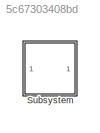
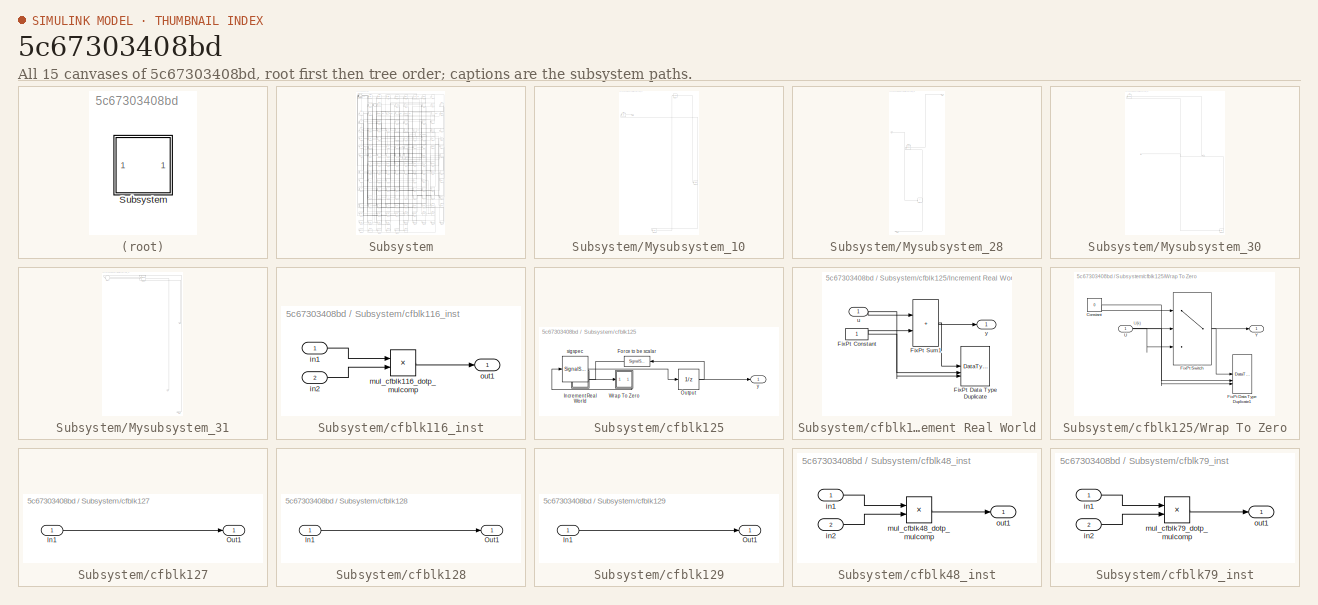
[diagram: thumbnail index - all 15 canvases of the model, root first then tree order]
MODEL slx_5c67303408bd
KIND model
CONFIG AbsTol = auto
CONFIG EnableMultiTasking = off
CONFIG FixedStep = auto
CONFIG MaxStep = auto
CONFIG MinStep = auto
CONFIG RelTol = 1e-3
CONFIG SampleTimeConstraint = Unconstrained
CONFIG SolverName = VariableStepAuto
CONFIG StartTime = 0.0
CONFIG StopTime = 10.0
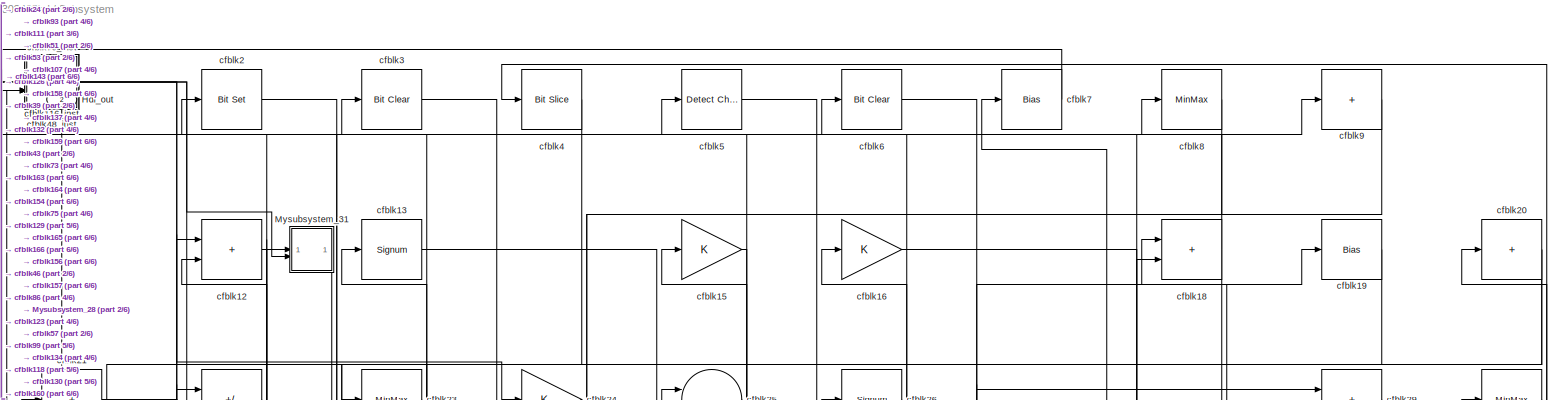
[diagram: Subsystem - part 1/6, full width, top band]
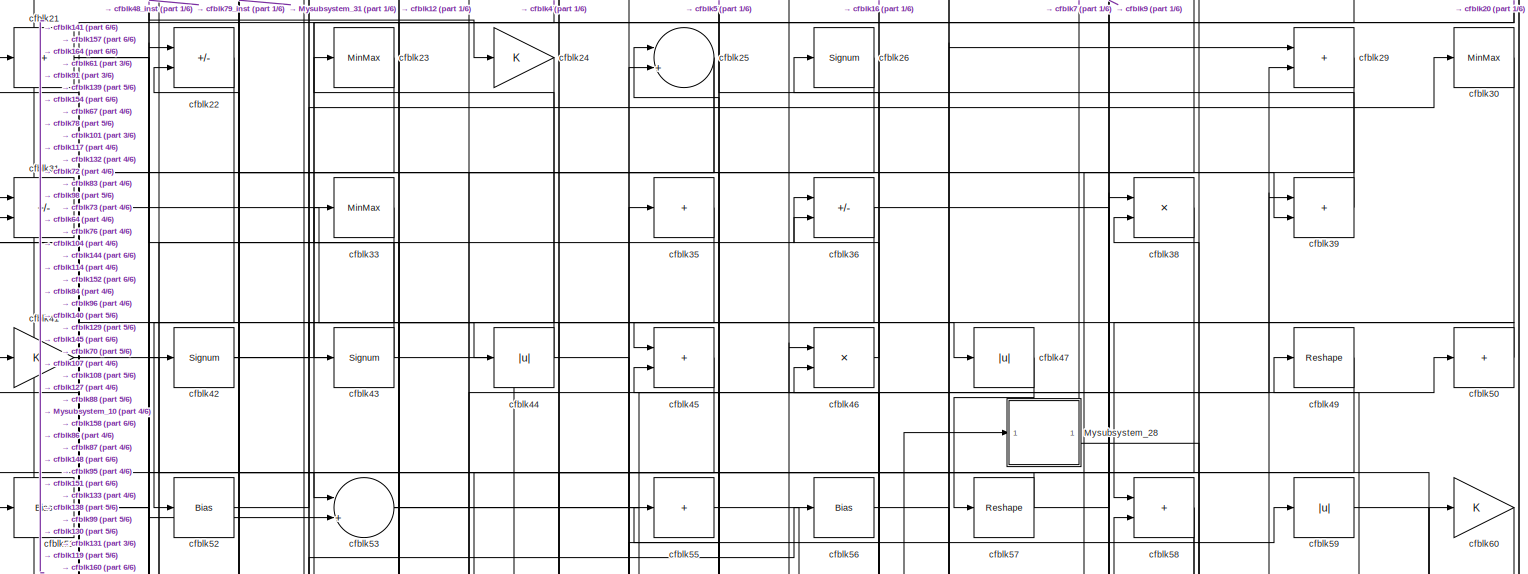
[diagram: Subsystem - part 2/6, full width, top band]
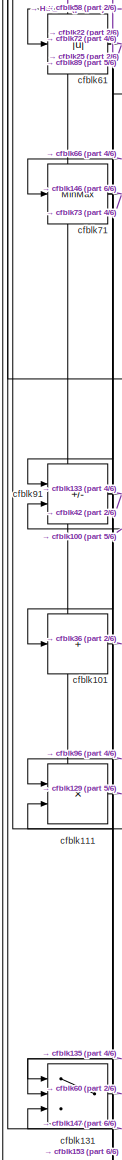
[diagram: Subsystem - part 3/6, middle left region]
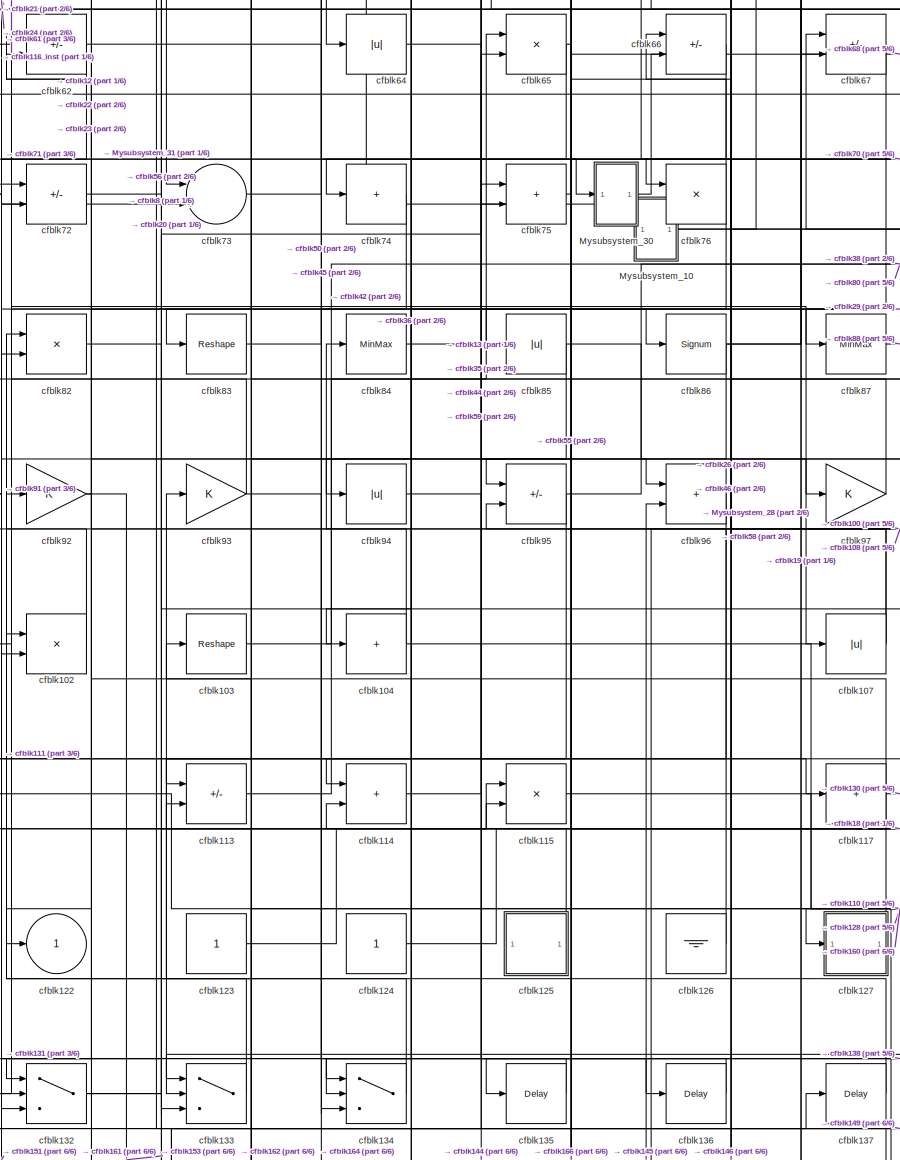
[diagram: Subsystem - part 4/6, central region]
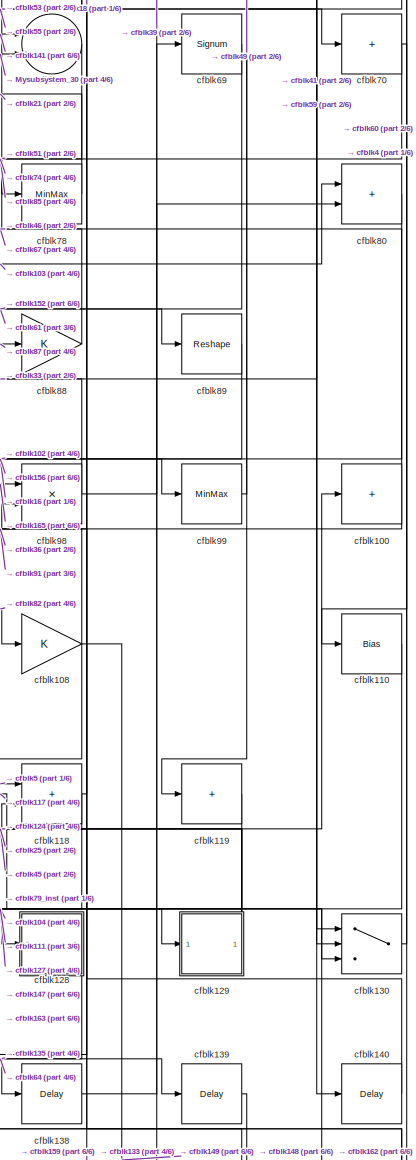
[diagram: Subsystem - part 5/6, middle right region]
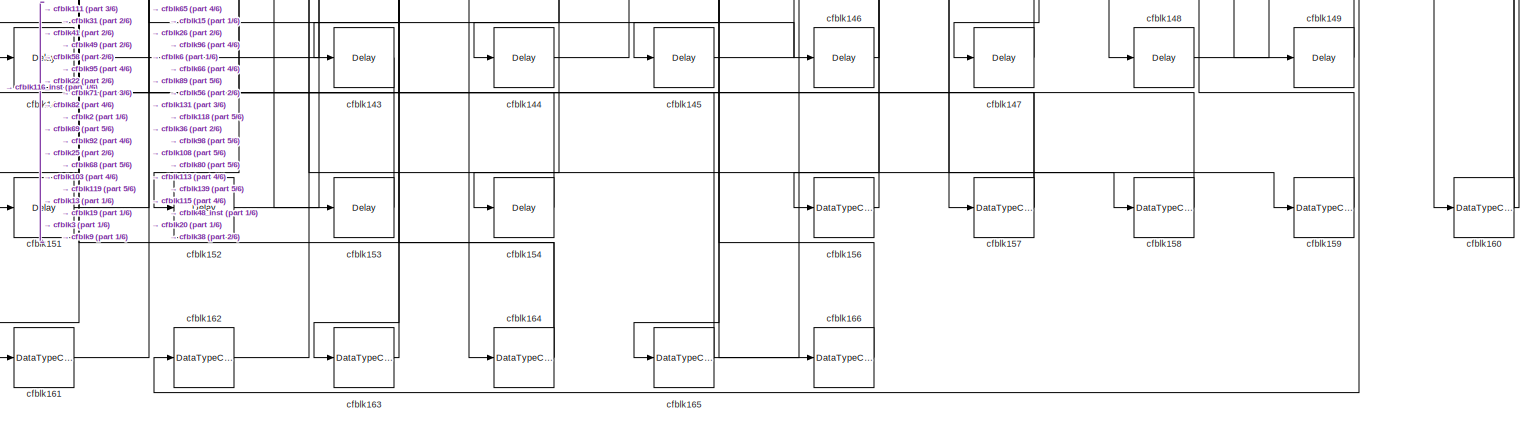
[diagram: Subsystem - part 6/6, full width, bottom band]
BLOCK [SubSystem] Subsystem
BLOCK [Outport] Subsystem/Hdl_out
  OutDataTypeStr = uint8
  Port = 2
  SampleTime = 1
BLOCK [SubSystem] Subsystem/Mysubsystem_10
BLOCK [Outport] Subsystem/Mysubsystem_10/Out1
  SampleTime = 1
BLOCK [Signum] Subsystem/Mysubsystem_10/cfblk109
BLOCK [Delay] Subsystem/Mysubsystem_10/cfblk155
  InputPortMap = u0
  SampleTime = 1
BLOCK [Reshape] Subsystem/Mysubsystem_10/cfblk17
BLOCK [Abs] Subsystem/Mysubsystem_10/cfblk32
  SaturateOnIntegerOverflow = off
BLOCK [SubSystem] Subsystem/Mysubsystem_28
BLOCK [Inport] Subsystem/Mysubsystem_28/In1
  OutDataTypeStr = uint8
  PortDimensions = 1
  SampleTime = 1
BLOCK [Outport] Subsystem/Mysubsystem_28/Out1
  SampleTime = 1
BLOCK [Outport] Subsystem/Mysubsystem_28/Out3
  Port = 2
  SampleTime = 1
BLOCK [Sum] Subsystem/Mysubsystem_28/cfblk105
  IconShape = rectangular
  Inputs = +
BLOCK [Signum] Subsystem/Mysubsystem_28/cfblk54
BLOCK [SubSystem] Subsystem/Mysubsystem_30
BLOCK [Inport] Subsystem/Mysubsystem_30/In1
  OutDataTypeStr = uint8
  PortDimensions = 1
  SampleTime = 1
BLOCK [Outport] Subsystem/Mysubsystem_30/Y
  SampleTime = 1
BLOCK [Reference] Subsystem/Mysubsystem_30/cfblk1  REF=simulink/Logic and Bit
Operations/Detect
Change
  LibrarySourceBlock = hdlsllib/Logic and Bit\nOperations/Detect\nChange
  SourceBlock = simulink/Logic and Bit\nOperations/Detect\nChange
  SourceType = Detect Change
BLOCK [Delay] Subsystem/Mysubsystem_30/cfblk150
  InputPortMap = u0
  SampleTime = 1
BLOCK [SubSystem] Subsystem/Mysubsystem_31
BLOCK [Inport] Subsystem/Mysubsystem_31/In1
  OutDataTypeStr = uint8
  PortDimensions = 1
  SampleTime = 1
BLOCK [Inport] Subsystem/Mysubsystem_31/In2
  OutDataTypeStr = uint8
  Port = 2
  PortDimensions = 1
  SampleTime = 1
BLOCK [Outport] Subsystem/Mysubsystem_31/Out1
  SampleTime = 1
BLOCK [Sum] Subsystem/Mysubsystem_31/cfblk11
  Inputs = |++
BLOCK [MinMax] Subsystem/Mysubsystem_31/cfblk14
BLOCK [Sum] Subsystem/cfblk100
  IconShape = rectangular
  Inputs = +
  OutDataTypeStr = uint8
BLOCK [Sum] Subsystem/cfblk101
  IconShape = rectangular
  Inputs = +
  OutDataTypeStr = uint8
BLOCK [Product] Subsystem/cfblk102
  Inputs = */
  OutDataTypeStr = uint8
  RndMeth = Zero
  SaturateOnIntegerOverflow = on
BLOCK [Reshape] Subsystem/cfblk103
BLOCK [Sum] Subsystem/cfblk104
  IconShape = rectangular
  Inputs = +
  OutDataTypeStr = uint8
BLOCK [Abs] Subsystem/cfblk107
  OutDataTypeStr = uint8
  SaturateOnIntegerOverflow = off
BLOCK [Gain] Subsystem/cfblk108
  OutDataTypeStr = uint8
BLOCK [Bias] Subsystem/cfblk110
  Bias = 0.0
  SaturateOnIntegerOverflow = off
BLOCK [Product] Subsystem/cfblk111
  Inputs = */
  OutDataTypeStr = uint8
  RndMeth = Zero
  SaturateOnIntegerOverflow = on
BLOCK [Sum] Subsystem/cfblk113
  IconShape = rectangular
  Inputs = +-
  OutDataTypeStr = uint8
BLOCK [Sum] Subsystem/cfblk114
  IconShape = rectangular
  OutDataTypeStr = uint8
BLOCK [Product] Subsystem/cfblk115
  Inputs = */
  OutDataTypeStr = uint8
  RndMeth = Zero
  SaturateOnIntegerOverflow = on
BLOCK [SubSystem] Subsystem/cfblk116_inst
BLOCK [Inport] Subsystem/cfblk116_inst/in1
  OutDataTypeStr = uint8
  SampleTime = 1
BLOCK [Inport] Subsystem/cfblk116_inst/in2
  OutDataTypeStr = uint8
  Port = 2
  SampleTime = 1
BLOCK [Product] Subsystem/cfblk116_inst/mul_cfblk116_dotp_mulcomp
  Inputs = **
  OutDataTypeStr = uint8
  SampleTime = 1
BLOCK [Outport] Subsystem/cfblk116_inst/out1
  OutDataTypeStr = uint8
  SampleTime = 1
BLOCK [Sum] Subsystem/cfblk117
  IconShape = rectangular
  Inputs = +
  OutDataTypeStr = uint8
BLOCK [Sum] Subsystem/cfblk118
  IconShape = rectangular
  OutDataTypeStr = uint8
BLOCK [Sum] Subsystem/cfblk119
  IconShape = rectangular
  Inputs = +
  OutDataTypeStr = uint8
BLOCK [Sum] Subsystem/cfblk12
  IconShape = rectangular
  OutDataTypeStr = uint8
BLOCK [Outport] Subsystem/cfblk122
  OutDataTypeStr = uint8
  SampleTime = 1
  VectorParamsAs1DForOutWhenUnconnected = off
BLOCK [Constant] Subsystem/cfblk123
  OutDataTypeStr = uint8
  SampleTime = -1
BLOCK [Constant] Subsystem/cfblk124
  OutDataTypeStr = uint8
  SampleTime = -1
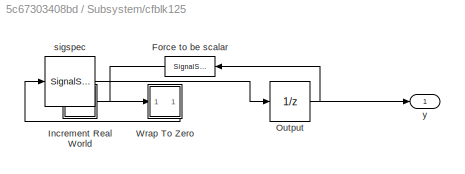
BLOCK [SubSystem] Subsystem/cfblk125
BLOCK [SignalSpecification] Subsystem/cfblk125/Force to be scalar
  Dimensions = 1
  DisableCoverage = on
BLOCK [SubSystem] Subsystem/cfblk125/Increment Real World
BLOCK [Constant] Subsystem/cfblk125/Increment Real World/FixPt Constant
  DisableCoverage = on
  OutDataTypeStr = Inherit: Inherit via back propagation
  SampleTime = -1
BLOCK [DataTypeDuplicate] Subsystem/cfblk125/Increment Real World/FixPt Data Type Duplicate
  DisableCoverage = on
  NumInputPorts = 3
BLOCK [Sum] Subsystem/cfblk125/Increment Real World/FixPt Sum1
  IconShape = rectangular
  InputSameDT = on
  LockScale = on
  OutDataTypeStr = Inherit: Inherit via back propagation
BLOCK [Inport] Subsystem/cfblk125/Increment Real World/u
  OutDataTypeStr = uint16
  SampleTime = 1
BLOCK [Outport] Subsystem/cfblk125/Increment Real World/y
  SampleTime = 1
BLOCK [UnitDelay] Subsystem/cfblk125/Output
  HasFrameUpgradeWarning = on
  InitialCondition = 0.0
  SampleTime = tsamp
BLOCK [SubSystem] Subsystem/cfblk125/Wrap To Zero
BLOCK [Constant] Subsystem/cfblk125/Wrap To Zero/Constant
  DisableCoverage = on
  OutDataTypeStr = Inherit: Inherit via back propagation
  SampleTime = -1
  Value = 0
BLOCK [DataTypeDuplicate] Subsystem/cfblk125/Wrap To Zero/FixPt Data Type Duplicate1
  DisableCoverage = on
  NumInputPorts = 3
BLOCK [Switch] Subsystem/cfblk125/Wrap To Zero/FixPt Switch
  Criteria = u2 > Threshold
  InputSameDT = off
  OutDataTypeStr = Inherit: Inherit via back propagation
  SaturateOnIntegerOverflow = off
  Threshold = Threshold
  ZeroCross = off
BLOCK [Inport] Subsystem/cfblk125/Wrap To Zero/U
  OutDataTypeStr = uint16
  SampleTime = 1
BLOCK [Outport] Subsystem/cfblk125/Wrap To Zero/Y
  SampleTime = 1
BLOCK [SignalSpecification] Subsystem/cfblk125/sigspec
  Dimensions = 1
  OutDataTypeStr = uint16
BLOCK [Outport] Subsystem/cfblk125/y
  SampleTime = 1
BLOCK [Ground] Subsystem/cfblk126
BLOCK [SubSystem] Subsystem/cfblk127
BLOCK [Inport] Subsystem/cfblk127/In1
  OutDataTypeStr = uint8
  PortDimensions = 1
  SampleTime = 1
BLOCK [Outport] Subsystem/cfblk127/Out1
  SampleTime = 1
BLOCK [SubSystem] Subsystem/cfblk128
BLOCK [Inport] Subsystem/cfblk128/In1
  OutDataTypeStr = uint8
  PortDimensions = 1
  SampleTime = 1
BLOCK [Outport] Subsystem/cfblk128/Out1
  SampleTime = 1
BLOCK [SubSystem] Subsystem/cfblk129
BLOCK [Inport] Subsystem/cfblk129/In1
  OutDataTypeStr = uint8
  PortDimensions = 1
  SampleTime = 1
BLOCK [Outport] Subsystem/cfblk129/Out1
  SampleTime = 1
BLOCK [Signum] Subsystem/cfblk13
BLOCK [Switch] Subsystem/cfblk130
  InputSameDT = off
  OutDataTypeStr = uint8
  SaturateOnIntegerOverflow = off
BLOCK [Switch] Subsystem/cfblk131
  InputSameDT = off
  OutDataTypeStr = uint8
  SaturateOnIntegerOverflow = off
BLOCK [Switch] Subsystem/cfblk132
  InputSameDT = off
  OutDataTypeStr = uint8
  SaturateOnIntegerOverflow = off
BLOCK [Switch] Subsystem/cfblk133
  InputSameDT = off
  OutDataTypeStr = uint8
  SaturateOnIntegerOverflow = off
BLOCK [Switch] Subsystem/cfblk134
  InputSameDT = off
  OutDataTypeStr = uint8
  SaturateOnIntegerOverflow = off
BLOCK [Delay] Subsystem/cfblk135
  InputPortMap = u0
  SampleTime = 1
BLOCK [Delay] Subsystem/cfblk136
  InputPortMap = u0
  SampleTime = 1
BLOCK [Delay] Subsystem/cfblk137
  InputPortMap = u0
  SampleTime = 1
BLOCK [Delay] Subsystem/cfblk138
  InputPortMap = u0
  SampleTime = 1
BLOCK [Delay] Subsystem/cfblk139
  InputPortMap = u0
  SampleTime = 1
BLOCK [Delay] Subsystem/cfblk140
  InputPortMap = u0
  SampleTime = 1
BLOCK [Delay] Subsystem/cfblk141
  InputPortMap = u0
  SampleTime = 1
BLOCK [Delay] Subsystem/cfblk143
  InputPortMap = u0
  SampleTime = 1
BLOCK [Delay] Subsystem/cfblk144
  InputPortMap = u0
  SampleTime = 1
BLOCK [Delay] Subsystem/cfblk145
  InputPortMap = u0
  SampleTime = 1
BLOCK [Delay] Subsystem/cfblk146
  InputPortMap = u0
  SampleTime = 1
BLOCK [Delay] Subsystem/cfblk147
  InputPortMap = u0
  SampleTime = 1
BLOCK [Delay] Subsystem/cfblk148
  InputPortMap = u0
  SampleTime = 1
BLOCK [Delay] Subsystem/cfblk149
  InputPortMap = u0
  SampleTime = 1
BLOCK [Gain] Subsystem/cfblk15
  OutDataTypeStr = uint8
BLOCK [Delay] Subsystem/cfblk151
  InputPortMap = u0
  SampleTime = 1
BLOCK [Delay] Subsystem/cfblk152
  InputPortMap = u0
  SampleTime = 1
BLOCK [Delay] Subsystem/cfblk153
  InputPortMap = u0
  SampleTime = 1
BLOCK [Delay] Subsystem/cfblk154
  InputPortMap = u0
  SampleTime = 1
BLOCK [DataTypeConversion] Subsystem/cfblk156
  OutDataTypeStr = uint8
  RndMeth = Floor
  SaturateOnIntegerOverflow = off
BLOCK [DataTypeConversion] Subsystem/cfblk157
  OutDataTypeStr = uint8
  RndMeth = Floor
  SaturateOnIntegerOverflow = off
BLOCK [DataTypeConversion] Subsystem/cfblk158
  OutDataTypeStr = uint8
  RndMeth = Floor
  SaturateOnIntegerOverflow = off
BLOCK [DataTypeConversion] Subsystem/cfblk159
  OutDataTypeStr = uint8
  RndMeth = Floor
  SaturateOnIntegerOverflow = off
BLOCK [Gain] Subsystem/cfblk16
  OutDataTypeStr = uint8
BLOCK [DataTypeConversion] Subsystem/cfblk160
  OutDataTypeStr = uint8
  RndMeth = Floor
  SaturateOnIntegerOverflow = off
BLOCK [DataTypeConversion] Subsystem/cfblk161
  OutDataTypeStr = uint8
  RndMeth = Floor
  SaturateOnIntegerOverflow = off
BLOCK [DataTypeConversion] Subsystem/cfblk162
  OutDataTypeStr = uint8
  RndMeth = Floor
  SaturateOnIntegerOverflow = off
BLOCK [DataTypeConversion] Subsystem/cfblk163
  OutDataTypeStr = uint8
  RndMeth = Floor
  SaturateOnIntegerOverflow = off
BLOCK [DataTypeConversion] Subsystem/cfblk164
  OutDataTypeStr = uint8
  RndMeth = Floor
  SaturateOnIntegerOverflow = off
BLOCK [DataTypeConversion] Subsystem/cfblk165
  OutDataTypeStr = uint8
  RndMeth = Floor
  SaturateOnIntegerOverflow = off
BLOCK [DataTypeConversion] Subsystem/cfblk166
  OutDataTypeStr = uint8
  RndMeth = Floor
  SaturateOnIntegerOverflow = off
BLOCK [Sum] Subsystem/cfblk18
  IconShape = rectangular
  OutDataTypeStr = uint8
BLOCK [Bias] Subsystem/cfblk19
  Bias = 0.0
  SaturateOnIntegerOverflow = off
BLOCK [Reference] Subsystem/cfblk2  REF=simulink/Logic and Bit
Operations/Bit Set
  LibrarySourceBlock = hdlsllib/Logic and Bit\nOperations/Bit Set
  SourceBlock = simulink/Logic and Bit\nOperations/Bit Set
  SourceType = Bit Set
BLOCK [Sum] Subsystem/cfblk20
  IconShape = rectangular
  Inputs = +
  OutDataTypeStr = uint8
BLOCK [Sum] Subsystem/cfblk21
  IconShape = rectangular
  Inputs = +
  OutDataTypeStr = uint8
BLOCK [Sum] Subsystem/cfblk22
  IconShape = rectangular
  Inputs = +-
  OutDataTypeStr = uint8
BLOCK [MinMax] Subsystem/cfblk23
  OutDataTypeStr = uint8
BLOCK [Gain] Subsystem/cfblk24
  OutDataTypeStr = uint8
BLOCK [Sum] Subsystem/cfblk25
  Inputs = |++
  OutDataTypeStr = uint8
BLOCK [Signum] Subsystem/cfblk26
BLOCK [Sum] Subsystem/cfblk29
  IconShape = rectangular
  OutDataTypeStr = uint8
BLOCK [Reference] Subsystem/cfblk3  REF=simulink/Logic and Bit
Operations/Bit Clear
  LibrarySourceBlock = hdlsllib/Logic and Bit\nOperations/Bit Clear
  SourceBlock = simulink/Logic and Bit\nOperations/Bit Clear
  SourceType = Bit Clear
BLOCK [MinMax] Subsystem/cfblk30
  OutDataTypeStr = uint8
BLOCK [Sum] Subsystem/cfblk31
  IconShape = rectangular
  Inputs = +-
  OutDataTypeStr = uint8
BLOCK [MinMax] Subsystem/cfblk33
  OutDataTypeStr = uint8
BLOCK [Sum] Subsystem/cfblk35
  IconShape = rectangular
  Inputs = +
  OutDataTypeStr = uint8
BLOCK [Sum] Subsystem/cfblk36
  IconShape = rectangular
  Inputs = +-
  OutDataTypeStr = uint8
BLOCK [Product] Subsystem/cfblk38
  Inputs = */
  OutDataTypeStr = uint8
  RndMeth = Zero
  SaturateOnIntegerOverflow = on
BLOCK [Sum] Subsystem/cfblk39
  IconShape = rectangular
  OutDataTypeStr = uint8
BLOCK [Reference] Subsystem/cfblk4  REF=hdlsllib/Logic and Bit
Operations/Bit Slice
  SourceBlock = hdlsllib/Logic and Bit\nOperations/Bit Slice
  SourceType = Bit Slice
BLOCK [Gain] Subsystem/cfblk41
  OutDataTypeStr = uint8
BLOCK [Signum] Subsystem/cfblk42
BLOCK [Signum] Subsystem/cfblk43
BLOCK [Abs] Subsystem/cfblk44
  OutDataTypeStr = uint8
  SaturateOnIntegerOverflow = off
BLOCK [Sum] Subsystem/cfblk45
  IconShape = rectangular
  OutDataTypeStr = uint8
BLOCK [Product] Subsystem/cfblk46
  Inputs = */
  OutDataTypeStr = uint8
  RndMeth = Zero
  SaturateOnIntegerOverflow = on
BLOCK [Abs] Subsystem/cfblk47
  OutDataTypeStr = uint8
  SaturateOnIntegerOverflow = off
BLOCK [SubSystem] Subsystem/cfblk48_inst
BLOCK [Inport] Subsystem/cfblk48_inst/in1
  OutDataTypeStr = uint8
  SampleTime = 1
BLOCK [Inport] Subsystem/cfblk48_inst/in2
  OutDataTypeStr = uint8
  Port = 2
  SampleTime = 1
BLOCK [Product] Subsystem/cfblk48_inst/mul_cfblk48_dotp_mulcomp
  Inputs = **
  OutDataTypeStr = uint8
  SampleTime = 1
BLOCK [Outport] Subsystem/cfblk48_inst/out1
  OutDataTypeStr = uint8
  SampleTime = 1
BLOCK [Reshape] Subsystem/cfblk49
BLOCK [Reference] Subsystem/cfblk5  REF=simulink/Logic and Bit
Operations/Detect
Change
  LibrarySourceBlock = hdlsllib/Logic and Bit\nOperations/Detect\nChange
  SourceBlock = simulink/Logic and Bit\nOperations/Detect\nChange
  SourceType = Detect Change
BLOCK [Sum] Subsystem/cfblk50
  IconShape = rectangular
  Inputs = +
  OutDataTypeStr = uint8
BLOCK [Bias] Subsystem/cfblk51
  Bias = 0.0
  SaturateOnIntegerOverflow = off
BLOCK [Bias] Subsystem/cfblk52
  Bias = 0.0
  SaturateOnIntegerOverflow = off
BLOCK [Sum] Subsystem/cfblk53
  Inputs = |++
  OutDataTypeStr = uint8
BLOCK [Sum] Subsystem/cfblk55
  IconShape = rectangular
  Inputs = +
  OutDataTypeStr = uint8
BLOCK [Bias] Subsystem/cfblk56
  Bias = 0.0
  SaturateOnIntegerOverflow = off
BLOCK [Reshape] Subsystem/cfblk57
BLOCK [Sum] Subsystem/cfblk58
  IconShape = rectangular
  OutDataTypeStr = uint8
BLOCK [Abs] Subsystem/cfblk59
  OutDataTypeStr = uint8
  SaturateOnIntegerOverflow = off
BLOCK [Reference] Subsystem/cfblk6  REF=simulink/Logic and Bit
Operations/Bit Clear
  LibrarySourceBlock = hdlsllib/Logic and Bit\nOperations/Bit Clear
  SourceBlock = simulink/Logic and Bit\nOperations/Bit Clear
  SourceType = Bit Clear
BLOCK [Gain] Subsystem/cfblk60
  OutDataTypeStr = uint8
BLOCK [Abs] Subsystem/cfblk61
  OutDataTypeStr = uint8
  SaturateOnIntegerOverflow = off
BLOCK [Sum] Subsystem/cfblk62
  IconShape = rectangular
  Inputs = +-
  OutDataTypeStr = uint8
BLOCK [Abs] Subsystem/cfblk64
  OutDataTypeStr = uint8
  SaturateOnIntegerOverflow = off
BLOCK [Product] Subsystem/cfblk65
  Inputs = */
  OutDataTypeStr = uint8
  RndMeth = Zero
  SaturateOnIntegerOverflow = on
BLOCK [Sum] Subsystem/cfblk66
  IconShape = rectangular
  Inputs = +-
  OutDataTypeStr = uint8
BLOCK [Sum] Subsystem/cfblk67
  IconShape = rectangular
  Inputs = +-
  OutDataTypeStr = uint8
BLOCK [Sum] Subsystem/cfblk68
  Inputs = |++
  OutDataTypeStr = uint8
BLOCK [Signum] Subsystem/cfblk69
BLOCK [Bias] Subsystem/cfblk7
  Bias = 0.0
  SaturateOnIntegerOverflow = off
BLOCK [Sum] Subsystem/cfblk70
  IconShape = rectangular
  Inputs = +
  OutDataTypeStr = uint8
BLOCK [MinMax] Subsystem/cfblk71
  OutDataTypeStr = uint8
BLOCK [Sum] Subsystem/cfblk72
  IconShape = rectangular
  Inputs = +-
  OutDataTypeStr = uint8
BLOCK [Sum] Subsystem/cfblk73
  Inputs = |++
  OutDataTypeStr = uint8
BLOCK [Sum] Subsystem/cfblk74
  IconShape = rectangular
  Inputs = +
  OutDataTypeStr = uint8
BLOCK [Sum] Subsystem/cfblk75
  IconShape = rectangular
  OutDataTypeStr = uint8
BLOCK [Product] Subsystem/cfblk76
  Inputs = */
  OutDataTypeStr = uint8
  RndMeth = Zero
  SaturateOnIntegerOverflow = on
BLOCK [MinMax] Subsystem/cfblk78
  OutDataTypeStr = uint8
BLOCK [SubSystem] Subsystem/cfblk79_inst
BLOCK [Inport] Subsystem/cfblk79_inst/in1
  OutDataTypeStr = uint8
  SampleTime = 1
BLOCK [Inport] Subsystem/cfblk79_inst/in2
  OutDataTypeStr = uint8
  Port = 2
  SampleTime = 1
BLOCK [Product] Subsystem/cfblk79_inst/mul_cfblk79_dotp_mulcomp
  Inputs = **
  OutDataTypeStr = uint8
  SampleTime = 1
BLOCK [Outport] Subsystem/cfblk79_inst/out1
  OutDataTypeStr = uint8
  SampleTime = 1
BLOCK [MinMax] Subsystem/cfblk8
  OutDataTypeStr = uint8
BLOCK [Sum] Subsystem/cfblk80
  IconShape = rectangular
  OutDataTypeStr = uint8
BLOCK [Product] Subsystem/cfblk82
  Inputs = */
  OutDataTypeStr = uint8
  RndMeth = Zero
  SaturateOnIntegerOverflow = on
BLOCK [Reshape] Subsystem/cfblk83
BLOCK [MinMax] Subsystem/cfblk84
  OutDataTypeStr = uint8
BLOCK [Abs] Subsystem/cfblk85
  OutDataTypeStr = uint8
  SaturateOnIntegerOverflow = off
BLOCK [Signum] Subsystem/cfblk86
BLOCK [MinMax] Subsystem/cfblk87
  OutDataTypeStr = uint8
BLOCK [Gain] Subsystem/cfblk88
  OutDataTypeStr = uint8
BLOCK [Reshape] Subsystem/cfblk89
BLOCK [Sum] Subsystem/cfblk9
  IconShape = rectangular
  Inputs = +
  OutDataTypeStr = uint8
BLOCK [Sum] Subsystem/cfblk91
  IconShape = rectangular
  Inputs = +-
  OutDataTypeStr = uint8
BLOCK [Gain] Subsystem/cfblk92
  OutDataTypeStr = uint8
BLOCK [Gain] Subsystem/cfblk93
  OutDataTypeStr = uint8
BLOCK [Abs] Subsystem/cfblk94
  OutDataTypeStr = uint8
  SaturateOnIntegerOverflow = off
BLOCK [Sum] Subsystem/cfblk95
  IconShape = rectangular
  Inputs = +-
  OutDataTypeStr = uint8
BLOCK [Sum] Subsystem/cfblk96
  IconShape = rectangular
  OutDataTypeStr = uint8
BLOCK [Gain] Subsystem/cfblk97
  OutDataTypeStr = uint8
BLOCK [Product] Subsystem/cfblk98
  Inputs = */
  OutDataTypeStr = uint8
  RndMeth = Zero
  SaturateOnIntegerOverflow = on
BLOCK [MinMax] Subsystem/cfblk99
  OutDataTypeStr = uint8
ANNOTATION Subsystem/cfblk125/Wrap To Zero: U(k)
NET Subsystem/Mysubsystem_10/cfblk109:1 -> Subsystem/Mysubsystem_10/cfblk155:1, Subsystem/Mysubsystem_10/cfblk32:1
LINE Subsystem/Mysubsystem_10/cfblk155:1 -> Subsystem/Mysubsystem_10/cfblk17:1
LINE Subsystem/Mysubsystem_10/cfblk17:1 -> Subsystem/Mysubsystem_10/cfblk109:1
LINE Subsystem/Mysubsystem_10/cfblk32:1 -> Subsystem/Mysubsystem_10/Out1:1
NET Subsystem/Mysubsystem_10:1 -> Subsystem/Mysubsystem_28:1, Subsystem/cfblk58:2
LINE Subsystem/Mysubsystem_28/In1:1 -> Subsystem/Mysubsystem_28/cfblk105:1
NET Subsystem/Mysubsystem_28/cfblk105:1 -> Subsystem/Mysubsystem_28/Out3:1, Subsystem/Mysubsystem_28/cfblk54:1
LINE Subsystem/Mysubsystem_28/cfblk54:1 -> Subsystem/Mysubsystem_28/Out1:1
LINE Subsystem/Mysubsystem_28:1 -> Subsystem/cfblk7:1
LINE Subsystem/Mysubsystem_28:2 -> Subsystem/cfblk133:2
LINE Subsystem/Mysubsystem_30/In1:1 -> Subsystem/Mysubsystem_30/cfblk150:1
LINE Subsystem/Mysubsystem_30/cfblk150:1 -> Subsystem/Mysubsystem_30/cfblk1:1
LINE Subsystem/Mysubsystem_30/cfblk1:1 -> Subsystem/Mysubsystem_30/Y:1
LINE Subsystem/Mysubsystem_30:1 -> Subsystem/cfblk68:2
LINE Subsystem/Mysubsystem_31/In1:1 -> Subsystem/Mysubsystem_31/cfblk14:1
LINE Subsystem/Mysubsystem_31/In2:1 -> Subsystem/Mysubsystem_31/cfblk11:2
LINE Subsystem/Mysubsystem_31/cfblk11:1 -> Subsystem/Mysubsystem_31/Out1:1
LINE Subsystem/Mysubsystem_31/cfblk14:1 -> Subsystem/Mysubsystem_31/cfblk11:1
LINE Subsystem/Mysubsystem_31:1 -> Subsystem/cfblk137:1
NET Subsystem/cfblk100:1 -> Subsystem/cfblk67:1, Subsystem/cfblk91:2
LINE Subsystem/cfblk101:1 -> Subsystem/cfblk36:1
LINE Subsystem/cfblk102:1 -> Subsystem/cfblk82:1
LINE Subsystem/cfblk103:1 -> Subsystem/cfblk80:1
NET Subsystem/cfblk104:1 -> Subsystem/cfblk128:1, Subsystem/cfblk84:1
NET Subsystem/cfblk107:1 -> Subsystem/cfblk26:1, Subsystem/cfblk95:2
NET Subsystem/cfblk108:1 -> Subsystem/cfblk133:1, Subsystem/cfblk149:1, Subsystem/cfblk36:2
LINE Subsystem/cfblk110:1 -> Subsystem/cfblk127:1
NET Subsystem/cfblk111:1 -> Subsystem/Hdl_out:1, Subsystem/cfblk129:1
LINE Subsystem/cfblk113:1 -> Subsystem/cfblk65:1
LINE Subsystem/cfblk114:1 -> Subsystem/cfblk35:1
LINE Subsystem/cfblk115:1 -> Subsystem/cfblk160:1
LINE Subsystem/cfblk116_inst/in1:1 -> Subsystem/cfblk116_inst/mul_cfblk116_dotp_mulcomp:1
LINE Subsystem/cfblk116_inst/in2:1 -> Subsystem/cfblk116_inst/mul_cfblk116_dotp_mulcomp:2
LINE Subsystem/cfblk116_inst/mul_cfblk116_dotp_mulcomp:1 -> Subsystem/cfblk116_inst/out1:1
NET Subsystem/cfblk116_inst:1 -> Subsystem/Mysubsystem_31:2, Subsystem/cfblk107:1
NET Subsystem/cfblk117:1 -> Subsystem/cfblk114:2, Subsystem/cfblk130:3, Subsystem/cfblk22:2
NET Subsystem/cfblk118:1 -> Subsystem/cfblk147:1, Subsystem/cfblk18:1
LINE Subsystem/cfblk119:1 -> Subsystem/cfblk163:1
LINE Subsystem/cfblk123:1 -> Subsystem/cfblk18:2
LINE Subsystem/cfblk124:1 -> Subsystem/cfblk100:1
LINE Subsystem/cfblk125:1 -> Subsystem/cfblk62:1
LINE Subsystem/cfblk126:1 -> Subsystem/cfblk12:2
LINE Subsystem/cfblk127/In1:1 -> Subsystem/cfblk127/Out1:1
LINE Subsystem/cfblk127:1 -> Subsystem/cfblk46:2
LINE Subsystem/cfblk128/In1:1 -> Subsystem/cfblk128/Out1:1
LINE Subsystem/cfblk128:1 -> Subsystem/cfblk135:1
LINE Subsystem/cfblk129/In1:1 -> Subsystem/cfblk129/Out1:1
NET Subsystem/cfblk129:1 -> Subsystem/cfblk25:1, Subsystem/cfblk45:2, Subsystem/cfblk79_inst:2
LINE Subsystem/cfblk12:1 -> Subsystem/cfblk39:2
LINE Subsystem/cfblk130:1 -> Subsystem/cfblk4:1
LINE Subsystem/cfblk131:1 -> Subsystem/cfblk60:1
NET Subsystem/cfblk132:1 -> Subsystem/cfblk75:1, Subsystem/cfblk8:1
LINE Subsystem/cfblk133:1 -> Subsystem/cfblk92:1
LINE Subsystem/cfblk134:1 -> Subsystem/cfblk93:1
LINE Subsystem/cfblk135:1 -> Subsystem/cfblk131:2
LINE Subsystem/cfblk136:1 -> Subsystem/cfblk134:2
LINE Subsystem/cfblk137:1 -> Subsystem/cfblk102:1
LINE Subsystem/cfblk138:1 -> Subsystem/cfblk39:1
LINE Subsystem/cfblk139:1 -> Subsystem/cfblk162:1
LINE Subsystem/cfblk13:1 -> Subsystem/cfblk75:2
LINE Subsystem/cfblk140:1 -> Subsystem/cfblk118:2
LINE Subsystem/cfblk141:1 -> Subsystem/cfblk68:1
LINE Subsystem/cfblk143:1 -> Subsystem/cfblk116_inst:1
LINE Subsystem/cfblk144:1 -> Subsystem/cfblk65:2
LINE Subsystem/cfblk145:1 -> Subsystem/cfblk96:2
LINE Subsystem/cfblk146:1 -> Subsystem/cfblk66:1
LINE Subsystem/cfblk147:1 -> Subsystem/cfblk131:3
LINE Subsystem/cfblk148:1 -> Subsystem/cfblk80:2
LINE Subsystem/cfblk149:1 -> Subsystem/cfblk113:2
LINE Subsystem/cfblk151:1 -> Subsystem/cfblk82:2
LINE Subsystem/cfblk152:1 -> Subsystem/cfblk25:2
LINE Subsystem/cfblk153:1 -> Subsystem/cfblk111:2
LINE Subsystem/cfblk154:1 -> Subsystem/cfblk22:1
LINE Subsystem/cfblk156:1 -> Subsystem/cfblk6:1
NET Subsystem/cfblk157:1 -> Subsystem/cfblk31:1, Subsystem/cfblk41:1
LINE Subsystem/cfblk158:1 -> Subsystem/cfblk2:1
LINE Subsystem/cfblk159:1 -> Subsystem/cfblk98:2
LINE Subsystem/cfblk15:1 -> Subsystem/cfblk165:1
NET Subsystem/cfblk160:1 -> Subsystem/cfblk20:1, Subsystem/cfblk38:2, Subsystem/cfblk48_inst:2
LINE Subsystem/cfblk161:1 -> Subsystem/cfblk115:1
LINE Subsystem/cfblk162:1 -> Subsystem/cfblk115:2
LINE Subsystem/cfblk163:1 -> Subsystem/cfblk3:1
NET Subsystem/cfblk164:1 -> Subsystem/cfblk103:1, Subsystem/cfblk31:2
NET Subsystem/cfblk165:1 -> Subsystem/cfblk13:1, Subsystem/cfblk98:1
LINE Subsystem/cfblk166:1 -> Subsystem/cfblk15:1
LINE Subsystem/cfblk16:1 -> Subsystem/cfblk99:1
NET Subsystem/cfblk18:1 -> Subsystem/cfblk134:3, Subsystem/cfblk79_inst:1
LINE Subsystem/cfblk19:1 -> Subsystem/cfblk143:1
NET Subsystem/cfblk20:1 -> Subsystem/cfblk51:1, Subsystem/cfblk73:1
NET Subsystem/cfblk21:1 -> Subsystem/cfblk53:1, Subsystem/cfblk67:2
LINE Subsystem/cfblk22:1 -> Subsystem/cfblk91:1
LINE Subsystem/cfblk23:1 -> Subsystem/cfblk132:1
LINE Subsystem/cfblk24:1 -> Subsystem/cfblk132:3
NET Subsystem/cfblk25:1 -> Subsystem/cfblk131:1, Subsystem/cfblk61:1
LINE Subsystem/cfblk26:1 -> Subsystem/cfblk145:1
LINE Subsystem/cfblk29:1 -> Subsystem/cfblk87:1
LINE Subsystem/cfblk2:1 -> Subsystem/cfblk159:1
LINE Subsystem/cfblk30:1 -> Subsystem/cfblk58:1
LINE Subsystem/cfblk31:1 -> Subsystem/cfblk47:1
LINE Subsystem/cfblk33:1 -> Subsystem/cfblk52:1
LINE Subsystem/cfblk35:1 -> Subsystem/cfblk83:1
NET Subsystem/cfblk36:1 -> Subsystem/cfblk104:1, Subsystem/cfblk148:1
LINE Subsystem/cfblk38:1 -> Subsystem/cfblk144:1
LINE Subsystem/cfblk39:1 -> Subsystem/cfblk5:1
LINE Subsystem/cfblk3:1 -> Subsystem/cfblk164:1
LINE Subsystem/cfblk41:1 -> Subsystem/cfblk130:2
NET Subsystem/cfblk42:1 -> Subsystem/cfblk44:1, Subsystem/cfblk76:2
LINE Subsystem/cfblk43:1 -> Subsystem/cfblk12:1
NET Subsystem/cfblk44:1 -> Subsystem/cfblk23:1, Subsystem/cfblk96:1
LINE Subsystem/cfblk45:1 -> Subsystem/cfblk64:1
LINE Subsystem/cfblk46:1 -> Subsystem/cfblk16:1
LINE Subsystem/cfblk47:1 -> Subsystem/cfblk57:1
LINE Subsystem/cfblk48_inst/in1:1 -> Subsystem/cfblk48_inst/mul_cfblk48_dotp_mulcomp:1
LINE Subsystem/cfblk48_inst/in2:1 -> Subsystem/cfblk48_inst/mul_cfblk48_dotp_mulcomp:2
LINE Subsystem/cfblk48_inst/mul_cfblk48_dotp_mulcomp:1 -> Subsystem/cfblk48_inst/out1:1
LINE Subsystem/cfblk48_inst:1 -> Subsystem/cfblk53:2
LINE Subsystem/cfblk49:1 -> Subsystem/cfblk141:1
LINE Subsystem/cfblk4:1 -> Subsystem/cfblk43:1
LINE Subsystem/cfblk50:1 -> Subsystem/cfblk45:1
NET Subsystem/cfblk51:1 -> Subsystem/cfblk139:1, Subsystem/cfblk78:1
LINE Subsystem/cfblk52:1 -> Subsystem/cfblk30:1
NET Subsystem/cfblk53:1 -> Subsystem/cfblk140:1, Subsystem/cfblk29:2
LINE Subsystem/cfblk55:1 -> Subsystem/cfblk70:1
LINE Subsystem/cfblk56:1 -> Subsystem/cfblk158:1
NET Subsystem/cfblk57:1 -> Subsystem/Mysubsystem_31:1, Subsystem/cfblk9:1
NET Subsystem/cfblk58:1 -> Subsystem/cfblk101:1, Subsystem/cfblk151:1
LINE Subsystem/cfblk59:1 -> Subsystem/cfblk130:1
LINE Subsystem/cfblk5:1 -> Subsystem/cfblk118:1
LINE Subsystem/cfblk60:1 -> Subsystem/cfblk119:1
NET Subsystem/cfblk61:1 -> Subsystem/cfblk72:1, Subsystem/cfblk89:1
NET Subsystem/cfblk62:1 -> Subsystem/Mysubsystem_30:1, Subsystem/cfblk72:2
LINE Subsystem/cfblk64:1 -> Subsystem/cfblk138:1
NET Subsystem/cfblk65:1 -> Subsystem/cfblk166:1, Subsystem/cfblk94:1
LINE Subsystem/cfblk66:1 -> Subsystem/cfblk71:1
LINE Subsystem/cfblk67:1 -> Subsystem/cfblk114:1
LINE Subsystem/cfblk68:1 -> Subsystem/cfblk85:1
LINE Subsystem/cfblk69:1 -> Subsystem/cfblk152:1
LINE Subsystem/cfblk6:1 -> Subsystem/cfblk157:1
NET Subsystem/cfblk70:1 -> Subsystem/cfblk110:1, Subsystem/cfblk74:1
NET Subsystem/cfblk71:1 -> Subsystem/cfblk146:1, Subsystem/cfblk73:2
LINE Subsystem/cfblk72:1 -> Subsystem/cfblk56:1
LINE Subsystem/cfblk73:1 -> Subsystem/cfblk50:1
LINE Subsystem/cfblk74:1 -> Subsystem/cfblk132:2
LINE Subsystem/cfblk75:1 -> Subsystem/cfblk66:2
NET Subsystem/cfblk76:1 -> Subsystem/cfblk55:1, Subsystem/cfblk95:1
LINE Subsystem/cfblk78:1 -> Subsystem/cfblk21:1
LINE Subsystem/cfblk79_inst/in1:1 -> Subsystem/cfblk79_inst/mul_cfblk79_dotp_mulcomp:1
LINE Subsystem/cfblk79_inst/in2:1 -> Subsystem/cfblk79_inst/mul_cfblk79_dotp_mulcomp:2
LINE Subsystem/cfblk79_inst/mul_cfblk79_dotp_mulcomp:1 -> Subsystem/cfblk79_inst/out1:1
LINE Subsystem/cfblk79_inst:1 -> Subsystem/cfblk24:1
LINE Subsystem/cfblk7:1 -> Subsystem/cfblk48_inst:1
LINE Subsystem/cfblk80:1 -> Subsystem/cfblk102:2
LINE Subsystem/cfblk82:1 -> Subsystem/cfblk108:1
LINE Subsystem/cfblk83:1 -> Subsystem/cfblk86:1
LINE Subsystem/cfblk84:1 -> Subsystem/cfblk59:1
NET Subsystem/cfblk85:1 -> Subsystem/cfblk113:1, Subsystem/cfblk97:1
NET Subsystem/cfblk86:1 -> Subsystem/cfblk122:1, Subsystem/cfblk19:1, Subsystem/cfblk29:1
LINE Subsystem/cfblk87:1 -> Subsystem/cfblk88:1
LINE Subsystem/cfblk88:1 -> Subsystem/cfblk46:1
LINE Subsystem/cfblk89:1 -> Subsystem/cfblk156:1
LINE Subsystem/cfblk8:1 -> Subsystem/cfblk134:1
NET Subsystem/cfblk91:1 -> Subsystem/cfblk133:3, Subsystem/cfblk42:1
NET Subsystem/cfblk92:1 -> Subsystem/cfblk153:1, Subsystem/cfblk62:2
NET Subsystem/cfblk93:1 -> Subsystem/cfblk116_inst:2, Subsystem/cfblk136:1
LINE Subsystem/cfblk94:1 -> Subsystem/cfblk117:1
NET Subsystem/cfblk95:1 -> Subsystem/cfblk161:1, Subsystem/cfblk38:1
LINE Subsystem/cfblk96:1 -> Subsystem/cfblk111:1
LINE Subsystem/cfblk97:1 -> Subsystem/cfblk76:1
NET Subsystem/cfblk98:1 -> Subsystem/cfblk33:1, Subsystem/cfblk69:1
LINE Subsystem/cfblk99:1 -> Subsystem/cfblk49:1
LINE Subsystem/cfblk9:1 -> Subsystem/cfblk154:1
note: NET lines group one-source signal fan-out (src -> all destinations, sorted); 1:1 wires keep LINE
